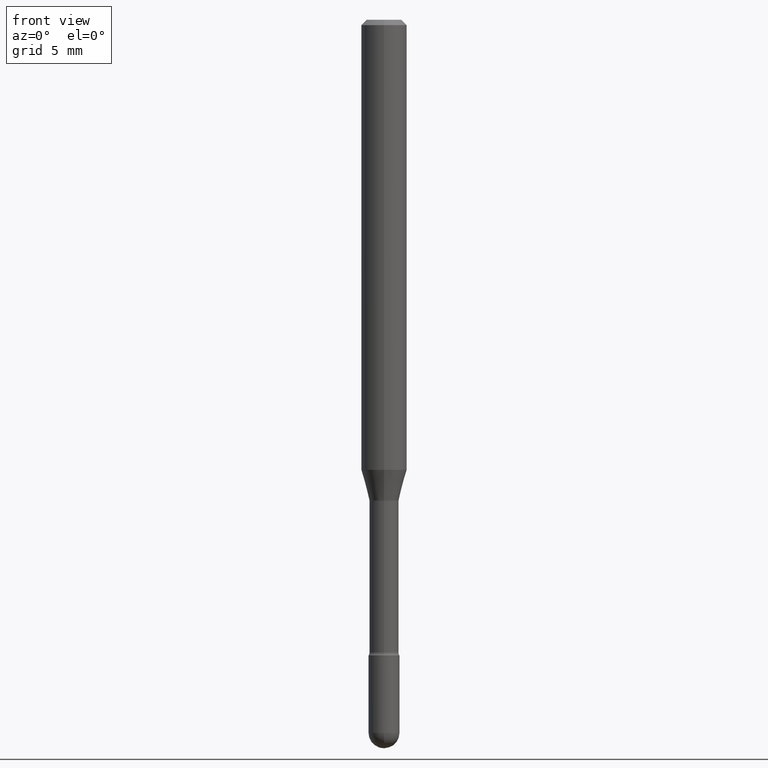
[diagram: clean part render]
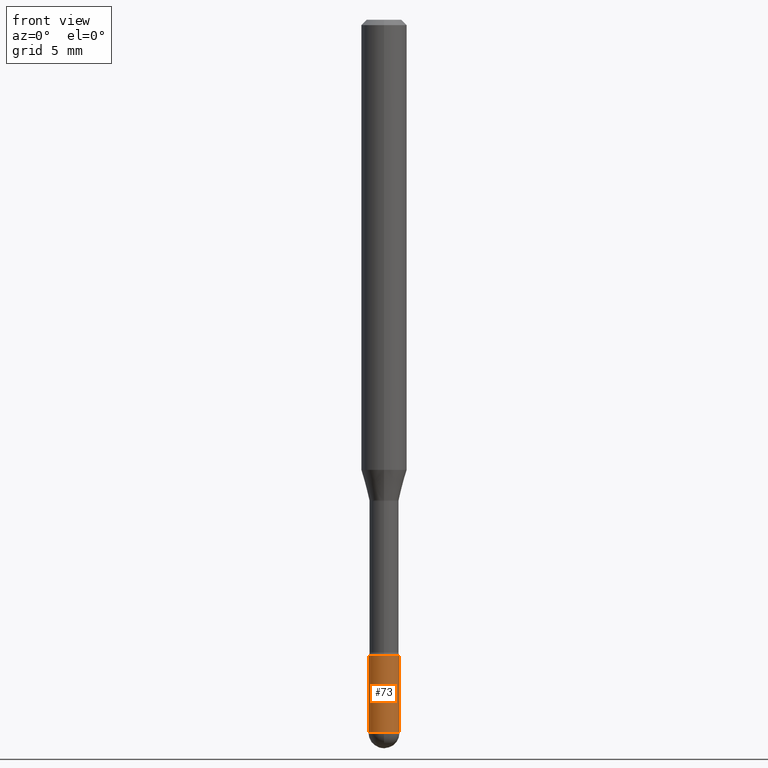
[diagram: same view with one face highlighted and labeled with its STEP entity id]
A machine part, front view. The second image highlights one B-rep face of the part: STEP entity #73.
In plain terms, the highlighted cylindrical surface (edge-blend (fillet) strip) has radius 1.0795 mm, axis along (-0, 0, 1).
Its self-contained STEP definition (entity closure, byte-faithful):
#11 = CIRCLE ( 'NONE', #463, 0.04250000000000000999 ) ;
#15 = DIRECTION ( 'NONE',  ( 1.000000000000000000, -6.982962677686276177E-15, 0.000000000000000000 ) ) ;
#16 = VERTEX_POINT ( 'NONE', #353 ) ;
#18 = EDGE_CURVE ( 'NONE', #16, #429, #426, .T. ) ;
#30 = AXIS2_PLACEMENT_3D ( 'NONE', #227, #49, #186 ) ;
#45 = DIRECTION ( 'NONE',  ( 1.000000000000000000, -6.982962677686266711E-15, 4.876176775795935793E-29 ) ) ;
#49 = DIRECTION ( 'NONE',  ( -2.445468806185136597E-29, 3.491481338843145583E-15, 1.000000000000000000 ) ) ;
#57 = CIRCLE ( 'NONE', #533, 0.04249999999999999611 ) ;
#71 = EDGE_CURVE ( 'NONE', #429, #238, #11, .T. ) ;
#73 = ADVANCED_FACE ( 'NONE', ( #268 ), #183, .T. ) ;
#115 = DIRECTION ( 'NONE',  ( -2.445468806185136877E-29, 3.491481338843145188E-15, 1.000000000000000000 ) ) ;
#118 = CARTESIAN_POINT ( 'NONE',  ( 0.04249999999999999611, -6.389410850082955497E-15, -1.745000000000000107 ) ) ;
#150 = ORIENTED_EDGE ( 'NONE', *, *, #206, .F. ) ;
#180 = DIRECTION ( 'NONE',  ( 1.000000000000000000, -6.982962677686273810E-15, 0.000000000000000000 ) ) ;
#181 = EDGE_CURVE ( 'NONE', #287, #201, #57, .T. ) ;
#183 = CYLINDRICAL_SURFACE ( 'NONE', #311, 0.04250000000000000999 ) ;
#186 = DIRECTION ( 'NONE',  ( 1.000000000000000000, -6.982962677686273810E-15, 0.000000000000000000 ) ) ;
#188 = EDGE_CURVE ( 'NONE', #238, #201, #544, .T. ) ;
#189 = DIRECTION ( 'NONE',  ( -2.445468806185136597E-29, 3.491481338843145583E-15, 1.000000000000000000 ) ) ;
#191 = CARTESIAN_POINT ( 'NONE',  ( 4.787005188107404686E-29, -6.834574720785457840E-15, -1.957500000000000018 ) ) ;
#200 = CARTESIAN_POINT ( 'NONE',  ( 4.267343066793063832E-29, -6.092634936281288846E-15, -1.745000000000000107 ) ) ;
#201 = VERTEX_POINT ( 'NONE', #118 ) ;
#206 = EDGE_CURVE ( 'NONE', #16, #287, #286, .T. ) ;
#227 = CARTESIAN_POINT ( 'NONE',  ( 4.787005188107404686E-29, -6.834574720785457840E-15, -1.957500000000000018 ) ) ;
#238 = VERTEX_POINT ( 'NONE', #535 ) ;
#246 = ORIENTED_EDGE ( 'NONE', *, *, #188, .T. ) ;
#251 = CARTESIAN_POINT ( 'NONE',  ( -0.04249999999999999611, -6.161624165835330496E-15, -1.745000000000000107 ) ) ;
#268 = FACE_OUTER_BOUND ( 'NONE', #513, .T. ) ;
#286 = LINE ( 'NONE', #498, #290 ) ;
#287 = VERTEX_POINT ( 'NONE', #251 ) ;
#288 = CARTESIAN_POINT ( 'NONE',  ( 0.04250000000000000999, -2.967759138016664042E-16, 2.072375129713273202E-30 ) ) ;
#290 = VECTOR ( 'NONE', #115, 39.37007874015748143 ) ;
#311 = AXIS2_PLACEMENT_3D ( 'NONE', #440, #316, #45 ) ;
#316 = DIRECTION ( 'NONE',  ( -2.445468806185136597E-29, 3.491481338843145583E-15, 1.000000000000000000 ) ) ;
#353 = CARTESIAN_POINT ( 'NONE',  ( -0.04250000000000000999, -6.161624165835330496E-15, -1.957500000000000018 ) ) ;
#366 = DIRECTION ( 'NONE',  ( -2.445468806185136877E-29, 3.491481338843145188E-15, 1.000000000000000000 ) ) ;
#371 = ORIENTED_EDGE ( 'NONE', *, *, #18, .T. ) ;
#376 = DIRECTION ( 'NONE',  ( -2.445468806185136597E-29, 3.491481338843145583E-15, 1.000000000000000000 ) ) ;
#380 = VECTOR ( 'NONE', #366, 39.37007874015748143 ) ;
#426 = CIRCLE ( 'NONE', #30, 0.04250000000000000999 ) ;
#429 = VERTEX_POINT ( 'NONE', #468 ) ;
#440 = CARTESIAN_POINT ( 'NONE',  ( 0.000000000000000000, 0.000000000000000000, 0.000000000000000000 ) ) ;
#463 = AXIS2_PLACEMENT_3D ( 'NONE', #191, #189, #180 ) ;
#468 = CARTESIAN_POINT ( 'NONE',  ( -3.019806626979944802E-16, -0.04250000000000681705, -1.957499999999999796 ) ) ;
#477 = ORIENTED_EDGE ( 'NONE', *, *, #181, .F. ) ;
#498 = CARTESIAN_POINT ( 'NONE',  ( -0.04250000000000000999, 3.019806626980426500E-16, -2.090547413358335560E-30 ) ) ;
#513 = EDGE_LOOP ( 'NONE', ( #150, #371, #546, #246, #477 ) ) ;
#533 = AXIS2_PLACEMENT_3D ( 'NONE', #200, #376, #15 ) ;
#535 = CARTESIAN_POINT ( 'NONE',  ( 0.04250000000000000999, -6.760380742335040388E-15, -1.957500000000000018 ) ) ;
#544 = LINE ( 'NONE', #288, #380 ) ;
#546 = ORIENTED_EDGE ( 'NONE', *, *, #71, .T. ) ;